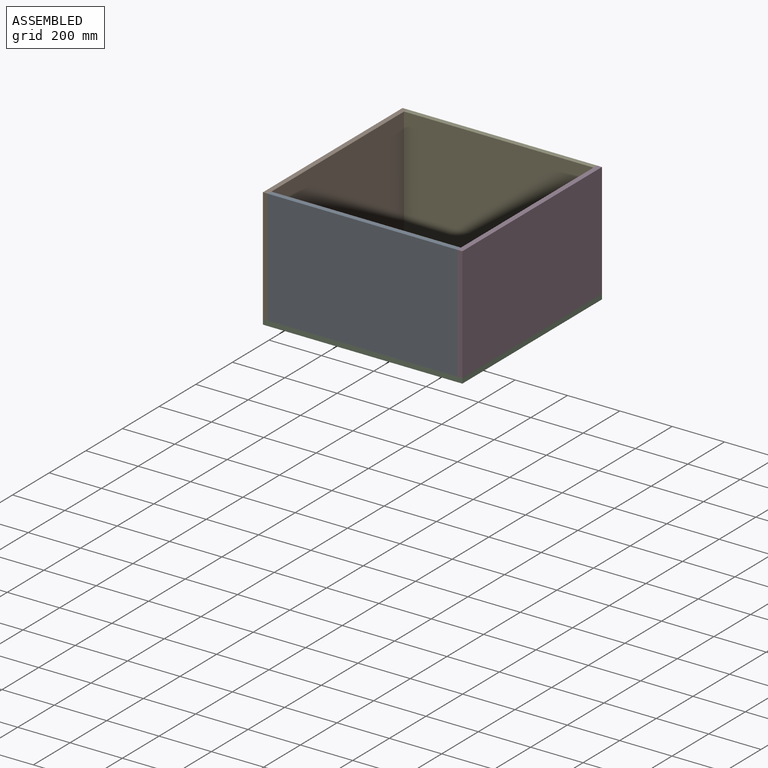
[diagram: assembled view]
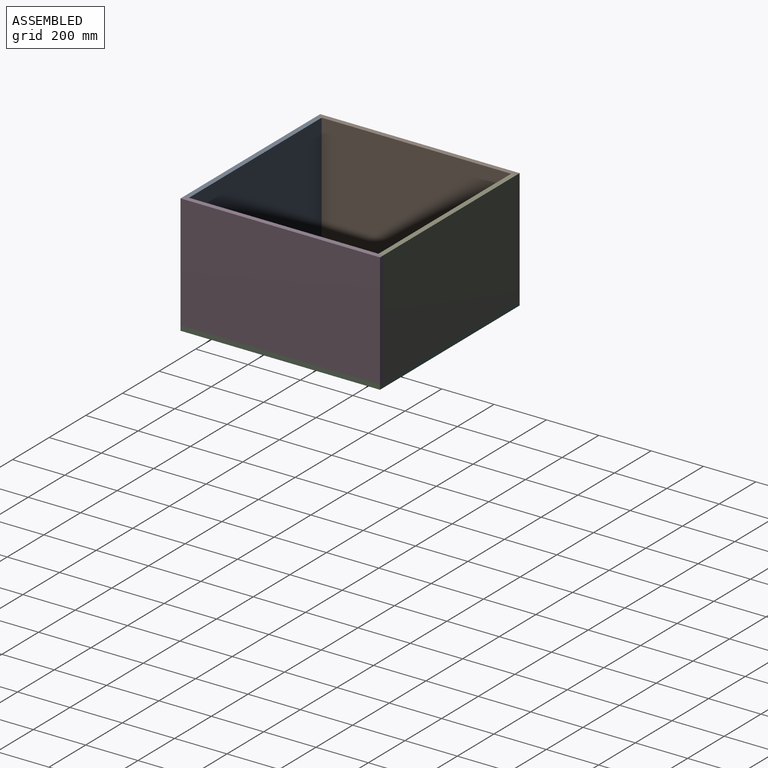
[diagram: assembled view, second angle]
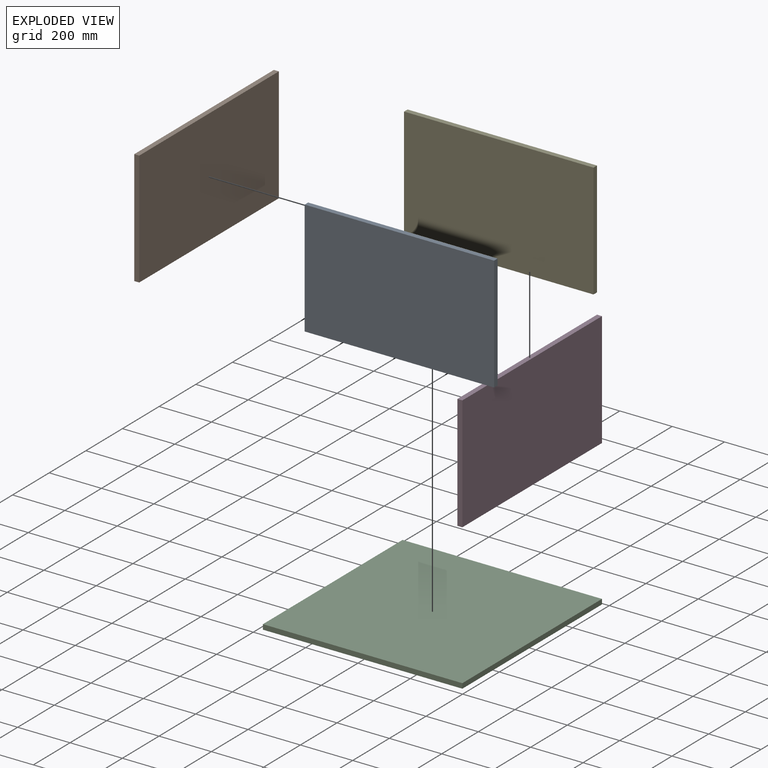
[diagram: exploded view]
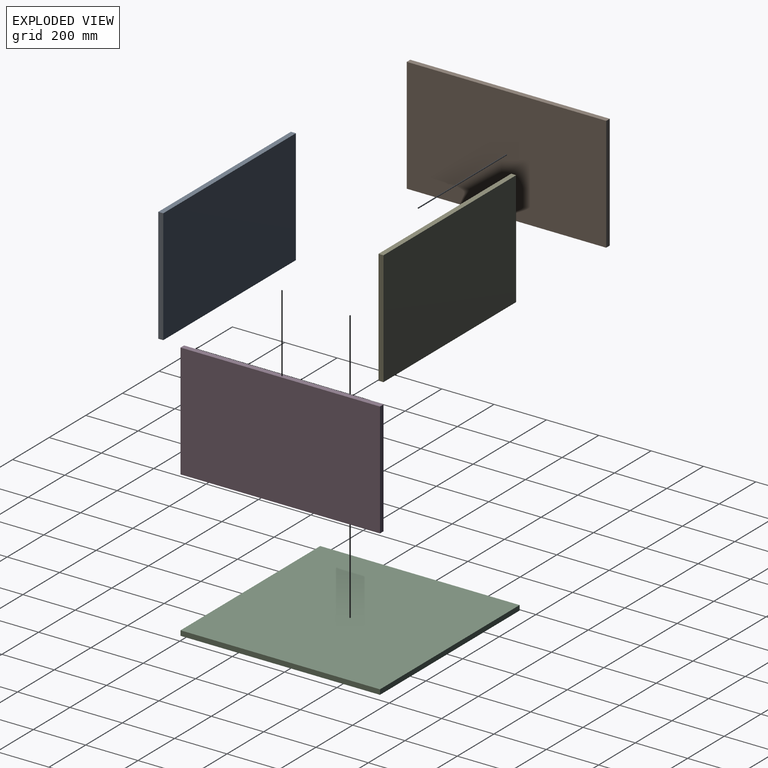
[diagram: exploded view, second angle]
ASSEMBLY  parts=5 mates=4
PART A: 6 faces, bbox 438.2x723.9x19.1 mm
  f0: plane 723.9x19.05mm, normal (1,0,0), area 13790.3mm2, adj f1,f3,f4,f5
  f1: plane 438.15x19.05mm, normal (0,1,0), area 8346.8mm2, adj f0,f2,f4,f5
  f2: plane 723.9x19.05mm, normal (-1,0,0), area 13790.3mm2, adj f1,f3,f4,f5
  f3: plane 438.15x19.05mm, normal (0,-1,0), area 8346.8mm2, adj f0,f2,f4,f5
  f4: plane 723.9x438.15mm, normal (0,0,1), area 317176.8mm2, adj f0,f1,f2,f3
  f5: plane 723.9x438.15mm, normal (0,0,-1), area 317176.8mm2, adj f0,f1,f2,f3
PART B: 6 faces, bbox 438.2x762x19.1 mm
  f0: plane 762x19.05mm, normal (1,0,0), area 14516.1mm2, adj f1,f3,f4,f5
  f1: plane 438.15x19.05mm, normal (0,1,0), area 8346.8mm2, adj f0,f2,f4,f5
  f2: plane 762x19.05mm, normal (-1,0,0), area 14516.1mm2, adj f1,f3,f4,f5
  f3: plane 438.15x19.05mm, normal (0,-1,0), area 8346.8mm2, adj f0,f2,f4,f5
  f4: plane 762x438.15mm, normal (0,0,1), area 333870.3mm2, adj f0,f1,f2,f3
  f5: plane 762x438.15mm, normal (0,0,-1), area 333870.3mm2, adj f0,f1,f2,f3
PART C: 6 faces, bbox 762x762x19.1 mm
  f0: plane 762x19.05mm, normal (-1,0,0), area 14516.1mm2, adj f1,f3,f4,f5
  f1: plane 762x19.05mm, normal (0,-1,0), area 14516.1mm2, adj f0,f2,f4,f5
  f2: plane 762x19.05mm, normal (1,0,0), area 14516.1mm2, adj f1,f3,f4,f5
  f3: plane 762x19.05mm, normal (0,1,0), area 14516.1mm2, adj f0,f2,f4,f5
  f4: plane 762x762mm, normal (0,0,1), area 580644mm2, adj f0,f1,f2,f3
  f5: plane 762x762mm, normal (0,0,-1), area 580644mm2, adj f0,f1,f2,f3
PART D: same geometry as B
PART E: same geometry as A
PLACE A rot(axis=(-0.58,0.58,0.58),120deg) t=(-611.58,-398.76,-203.35)mm
PLACE B rot(axis=(0,1,0),90deg) t=(-363.93,-627.36,577.7)mm
PLACE C t=(245.67,-627.36,-50.95)mm
PLACE D rot(axis=(0,1,0),90deg) t=(379.02,-627.36,577.7)mm
PLACE E rot(axis=(-0.58,0.58,0.58),120deg) t=(-611.58,344.19,-203.35)mm
MATE fastened D.f0 <-> C.f4  axis (0,0,-1) through (398.07,363.24,-31.9)mm
MATE fastened B.f0 <-> C.f4  axis (0,0,-1) through (-363.93,363.24,-31.9)mm
MATE fastened A.f3 <-> D.f5  axis (1,0,0) through (379.02,-398.76,406.25)mm
MATE fastened E.f1 <-> B.f4  axis (-1,0,0) through (-344.88,363.24,406.25)mm
